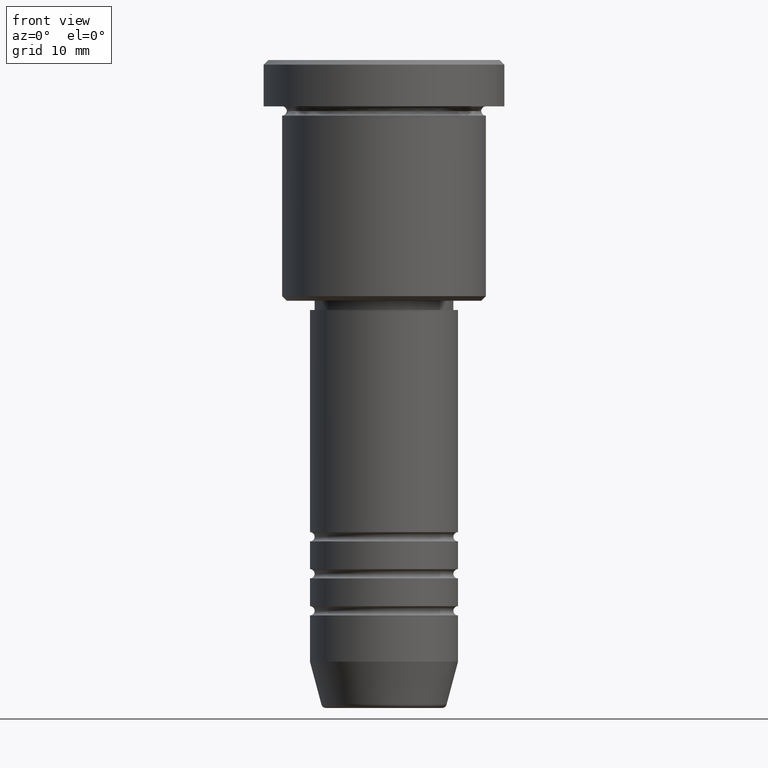
[diagram: clean part render]
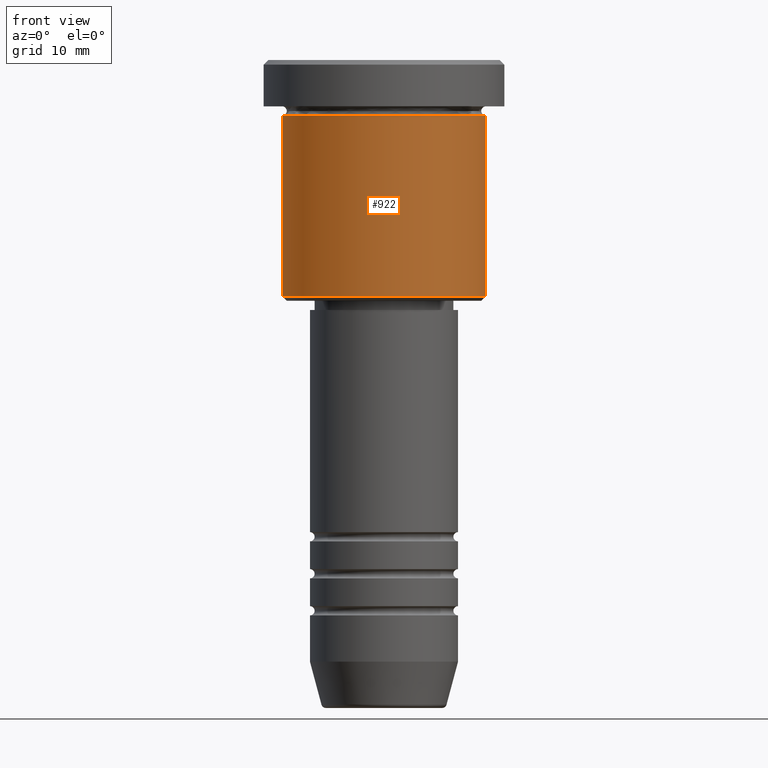
[diagram: same view with one face highlighted and labeled with its STEP entity id]
A machine part, front view. The second image highlights one B-rep face of the part: STEP entity #922.
In plain terms, the highlighted cylindrical surface (partial cylindrical patch) has radius 11 mm, axis along (-0, -0, 1).
Its self-contained STEP definition (entity closure, byte-faithful):
#108 = ORIENTED_EDGE ( 'NONE', *, *, #1123, .T. ) ;
#162 = VERTEX_POINT ( 'NONE', #437 ) ;
#173 = ORIENTED_EDGE ( 'NONE', *, *, #234, .T. ) ;
#205 = VECTOR ( 'NONE', #475, 1000.000000000000000 ) ;
#215 = DIRECTION ( 'NONE',  ( -0.000000000000000000, -0.000000000000000000, 1.000000000000000000 ) ) ;
#234 = EDGE_CURVE ( 'NONE', #1099, #985, #297, .T. ) ;
#297 = LINE ( 'NONE', #939, #205 ) ;
#302 = DIRECTION ( 'NONE',  ( -0.000000000000000000, -0.000000000000000000, 1.000000000000000000 ) ) ;
#319 = CARTESIAN_POINT ( 'NONE',  ( 0.000000000000000000, 0.000000000000000000, 0.000000000000000000 ) ) ;
#394 = VECTOR ( 'NONE', #215, 1000.000000000000000 ) ;
#437 = CARTESIAN_POINT ( 'NONE',  ( -11.00000000000000000, 1.347111479062088405E-15, -25.50000000000001066 ) ) ;
#475 = DIRECTION ( 'NONE',  ( -0.000000000000000000, -0.000000000000000000, 1.000000000000000000 ) ) ;
#477 = CARTESIAN_POINT ( 'NONE',  ( -11.00000000000000000, 1.347111479062088405E-15, -5.999999999999999112 ) ) ;
#497 = DIRECTION ( 'NONE',  ( 1.000000000000000000, 0.000000000000000000, 0.000000000000000000 ) ) ;
#500 = CARTESIAN_POINT ( 'NONE',  ( -11.00000000000000000, 1.347111479062088405E-15, 0.000000000000000000 ) ) ;
#517 = CYLINDRICAL_SURFACE ( 'NONE', #1134, 11.00000000000000000 ) ;
#520 = ORIENTED_EDGE ( 'NONE', *, *, #1055, .F. ) ;
#624 = CIRCLE ( 'NONE', #1060, 11.00000000000000000 ) ;
#635 = FACE_OUTER_BOUND ( 'NONE', #979, .T. ) ;
#660 = VERTEX_POINT ( 'NONE', #477 ) ;
#729 = EDGE_CURVE ( 'NONE', #660, #985, #1019, .T. ) ;
#766 = ORIENTED_EDGE ( 'NONE', *, *, #729, .F. ) ;
#777 = LINE ( 'NONE', #500, #394 ) ;
#781 = CARTESIAN_POINT ( 'NONE',  ( 11.00000000000000000, 0.000000000000000000, -25.50000000000001066 ) ) ;
#864 = AXIS2_PLACEMENT_3D ( 'NONE', #976, #965, #1045 ) ;
#902 = CARTESIAN_POINT ( 'NONE',  ( 0.000000000000000000, 0.000000000000000000, -25.50000000000001066 ) ) ;
#922 = ADVANCED_FACE ( 'NONE', ( #635 ), #517, .T. ) ;
#939 = CARTESIAN_POINT ( 'NONE',  ( 11.00000000000000000, 0.000000000000000000, 0.000000000000000000 ) ) ;
#952 = CARTESIAN_POINT ( 'NONE',  ( 11.00000000000000000, 0.000000000000000000, -5.999999999999999112 ) ) ;
#965 = DIRECTION ( 'NONE',  ( -0.000000000000000000, -0.000000000000000000, 1.000000000000000000 ) ) ;
#976 = CARTESIAN_POINT ( 'NONE',  ( 0.000000000000000000, 0.000000000000000000, -5.999999999999999112 ) ) ;
#979 = EDGE_LOOP ( 'NONE', ( #520, #108, #173, #766 ) ) ;
#985 = VERTEX_POINT ( 'NONE', #952 ) ;
#1019 = CIRCLE ( 'NONE', #864, 11.00000000000000000 ) ;
#1045 = DIRECTION ( 'NONE',  ( 1.000000000000000000, 0.000000000000000000, 0.000000000000000000 ) ) ;
#1055 = EDGE_CURVE ( 'NONE', #162, #660, #777, .T. ) ;
#1060 = AXIS2_PLACEMENT_3D ( 'NONE', #902, #1160, #1155 ) ;
#1099 = VERTEX_POINT ( 'NONE', #781 ) ;
#1123 = EDGE_CURVE ( 'NONE', #162, #1099, #624, .T. ) ;
#1134 = AXIS2_PLACEMENT_3D ( 'NONE', #319, #302, #497 ) ;
#1155 = DIRECTION ( 'NONE',  ( -1.000000000000000000, 0.000000000000000000, 0.000000000000000000 ) ) ;
#1160 = DIRECTION ( 'NONE',  ( -0.000000000000000000, -0.000000000000000000, 1.000000000000000000 ) ) ;